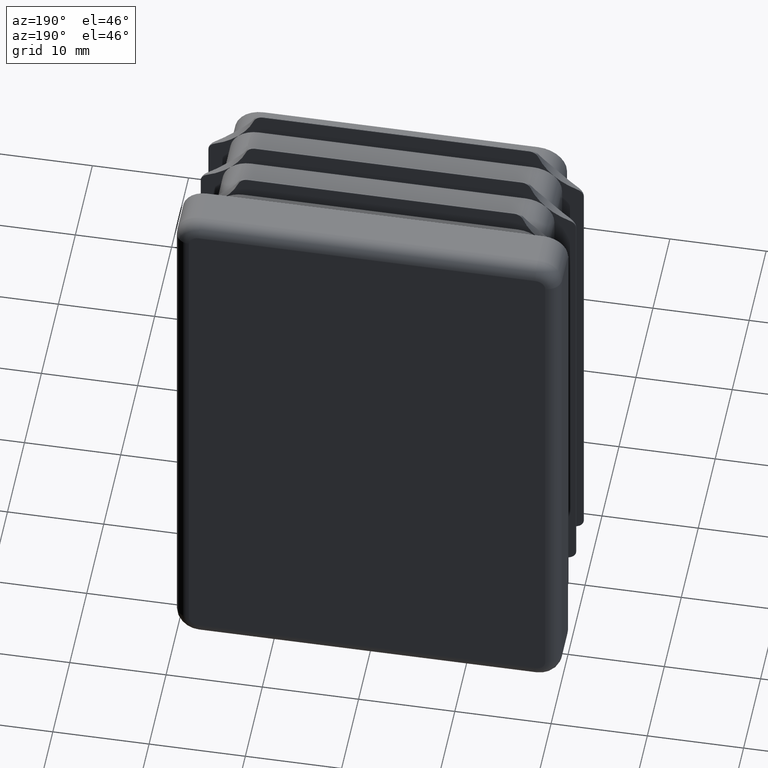
[diagram: clean part render]
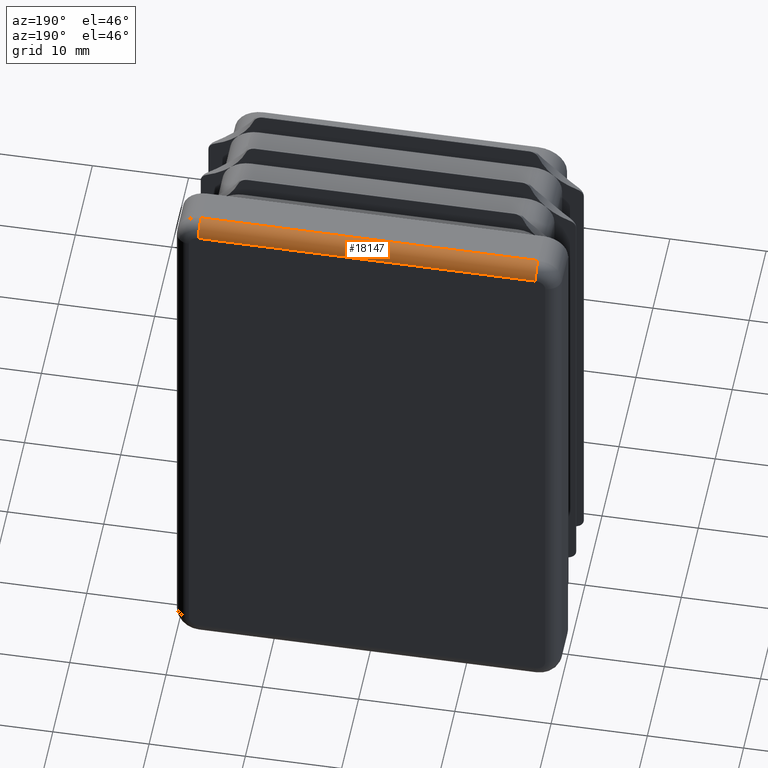
[diagram: same view with one face highlighted and labeled with its STEP entity id]
A machine part, auxiliary view. The second image highlights one B-rep face of the part: STEP entity #18147.
In plain terms, the highlighted cylindrical surface (edge-blend (fillet) strip) has radius 1.5 mm, axis along (-1, 0, 0).
Its self-contained STEP definition (entity closure, byte-faithful):
#603 = EDGE_LOOP ( 'NONE', ( #3384, #6974, #12730, #16767 ) ) ;
#752 = AXIS2_PLACEMENT_3D ( 'NONE', #1053, #14392, #12843 ) ;
#1053 = CARTESIAN_POINT ( 'NONE',  ( 17.50000000000000711, 3.500000000000000000, 28.50000000000000711 ) ) ;
#1775 = VERTEX_POINT ( 'NONE', #10991 ) ;
#2556 = AXIS2_PLACEMENT_3D ( 'NONE', #15558, #11147, #2581 ) ;
#2581 = DIRECTION ( 'NONE',  ( 0.000000000000000000, 0.000000000000000000, 1.000000000000000000 ) ) ;
#3337 = VERTEX_POINT ( 'NONE', #17522 ) ;
#3364 = AXIS2_PLACEMENT_3D ( 'NONE', #8170, #9550, #14003 ) ;
#3384 = ORIENTED_EDGE ( 'NONE', *, *, #10145, .T. ) ;
#3510 = VECTOR ( 'NONE', #17821, 1000.000000000000000 ) ;
#4492 = CIRCLE ( 'NONE', #3364, 1.500000000000001332 ) ;
#5274 = EDGE_CURVE ( 'NONE', #1775, #3337, #7923, .T. ) ;
#6691 = CARTESIAN_POINT ( 'NONE',  ( -17.49999999999999645, 5.000000000000000000, 28.50000000000001066 ) ) ;
#6974 = ORIENTED_EDGE ( 'NONE', *, *, #5274, .F. ) ;
#7604 = VECTOR ( 'NONE', #16769, 1000.000000000000000 ) ;
#7923 = LINE ( 'NONE', #19177, #3510 ) ;
#8170 = CARTESIAN_POINT ( 'NONE',  ( -17.49999999999999645, 3.500000000000000000, 28.50000000000001066 ) ) ;
#8689 = CIRCLE ( 'NONE', #752, 1.500000000000001332 ) ;
#9550 = DIRECTION ( 'NONE',  ( 1.000000000000000000, 0.000000000000000000, 0.000000000000000000 ) ) ;
#9552 = EDGE_CURVE ( 'NONE', #17412, #1775, #8689, .T. ) ;
#10145 = EDGE_CURVE ( 'NONE', #17505, #3337, #4492, .T. ) ;
#10797 = CARTESIAN_POINT ( 'NONE',  ( 17.50000000000000711, 5.000000000000000000, 28.50000000000000711 ) ) ;
#10991 = CARTESIAN_POINT ( 'NONE',  ( 17.50000000000001066, 3.500000000000000000, 30.00000000000001066 ) ) ;
#11147 = DIRECTION ( 'NONE',  ( -1.000000000000000000, 0.000000000000000000, 0.000000000000000000 ) ) ;
#11552 = LINE ( 'NONE', #15293, #7604 ) ;
#12039 = CYLINDRICAL_SURFACE ( 'NONE', #2556, 1.500000000000001332 ) ;
#12730 = ORIENTED_EDGE ( 'NONE', *, *, #9552, .F. ) ;
#12843 = DIRECTION ( 'NONE',  ( -2.312964634635740689E-15, 0.000000000000000000, -1.000000000000000000 ) ) ;
#14003 = DIRECTION ( 'NONE',  ( 0.000000000000000000, 0.000000000000000000, -1.000000000000000000 ) ) ;
#14392 = DIRECTION ( 'NONE',  ( 1.000000000000000000, 0.000000000000000000, -2.312964634635740689E-15 ) ) ;
#15071 = FACE_OUTER_BOUND ( 'NONE', #603, .T. ) ;
#15293 = CARTESIAN_POINT ( 'NONE',  ( 17.50000000000001066, 5.000000000000000000, 28.50000000000000711 ) ) ;
#15558 = CARTESIAN_POINT ( 'NONE',  ( 0.000000000000000000, 3.500000000000000000, 28.50000000000000711 ) ) ;
#16767 = ORIENTED_EDGE ( 'NONE', *, *, #18722, .F. ) ;
#16769 = DIRECTION ( 'NONE',  ( 1.000000000000000000, -0.000000000000000000, 0.000000000000000000 ) ) ;
#17412 = VERTEX_POINT ( 'NONE', #10797 ) ;
#17505 = VERTEX_POINT ( 'NONE', #6691 ) ;
#17522 = CARTESIAN_POINT ( 'NONE',  ( -17.49999999999999645, 3.500000000000000000, 30.00000000000001066 ) ) ;
#17821 = DIRECTION ( 'NONE',  ( -1.000000000000000000, -0.000000000000000000, -0.000000000000000000 ) ) ;
#18147 = ADVANCED_FACE ( 'NONE', ( #15071 ), #12039, .T. ) ;
#18722 = EDGE_CURVE ( 'NONE', #17505, #17412, #11552, .T. ) ;
#19177 = CARTESIAN_POINT ( 'NONE',  ( -17.49999999999999645, 3.500000000000000000, 30.00000000000001066 ) ) ;